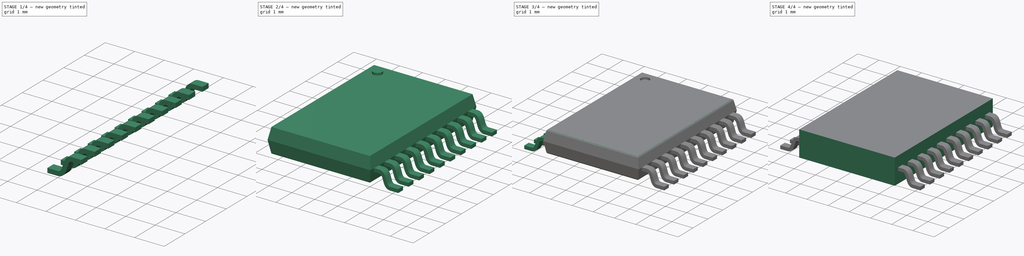
[diagram: build sequence overview — one tinted view per stage of 4, left to right]
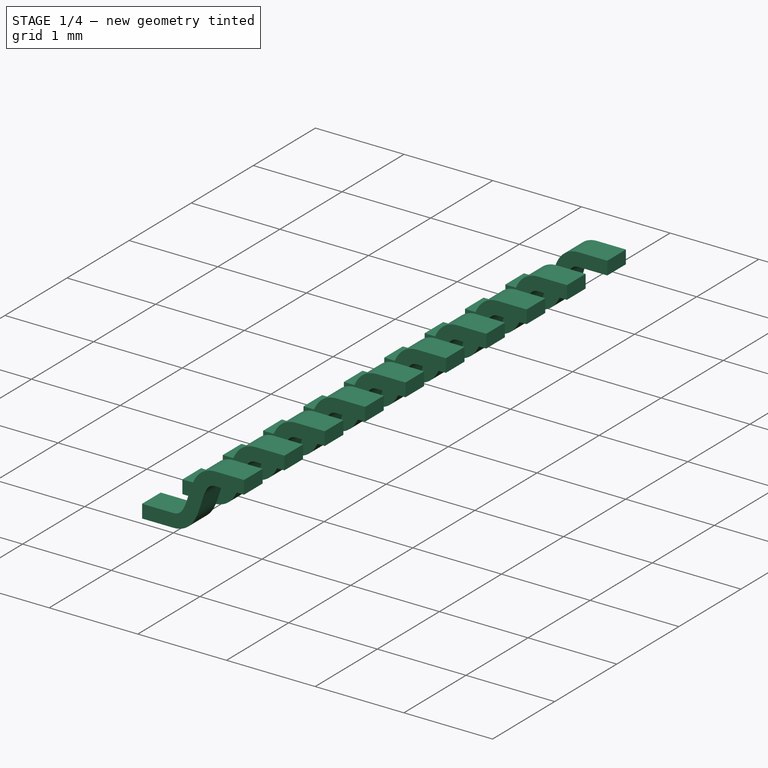
[diagram: stage 1 of 4 — iso view after this stage's code; geometry added in this stage tinted green]
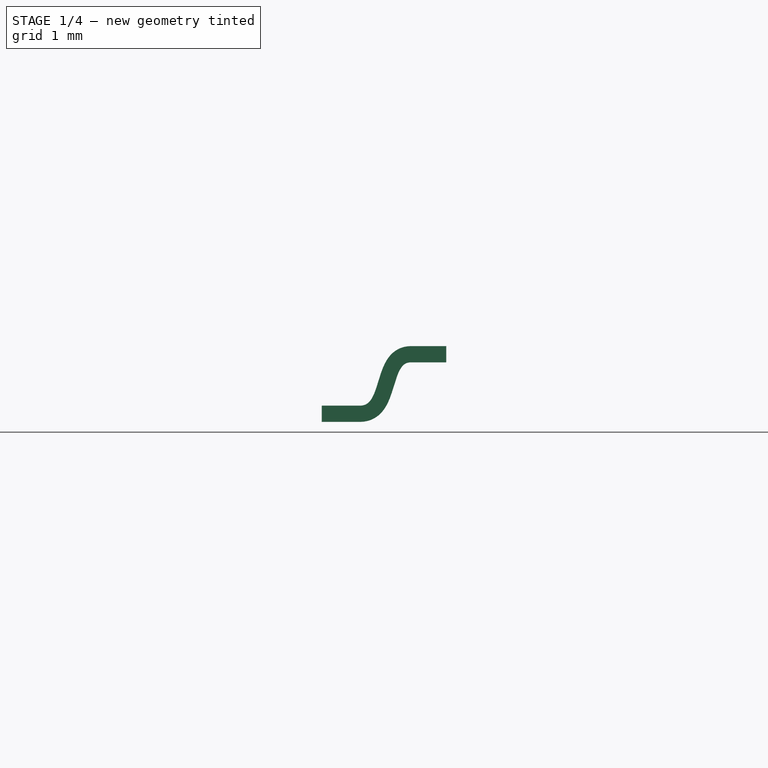
[diagram: stage 1 of 4 — front view after this stage's code; geometry added in this stage tinted green]
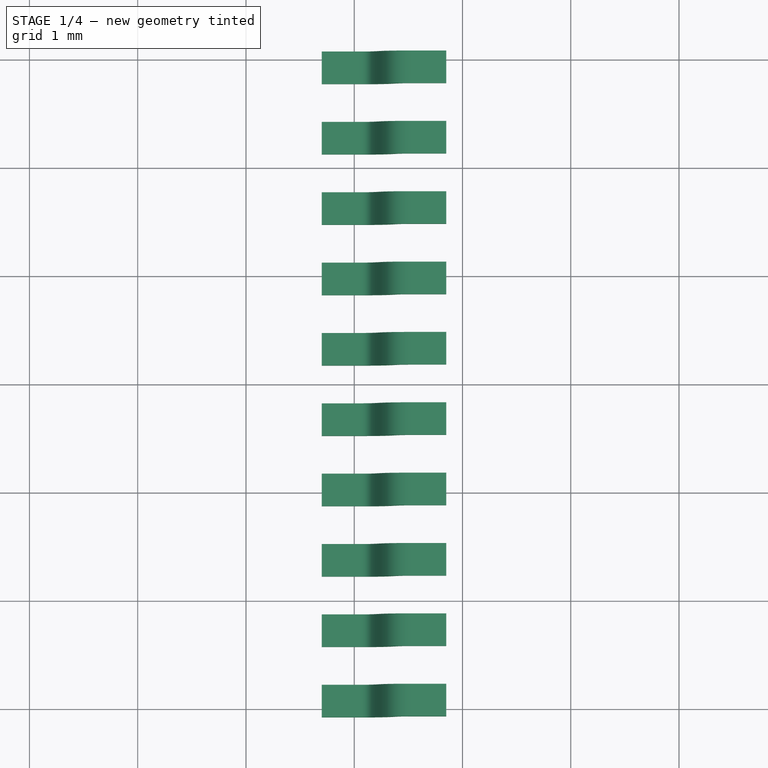
[diagram: stage 1 of 4 — top view after this stage's code; geometry added in this stage tinted green]
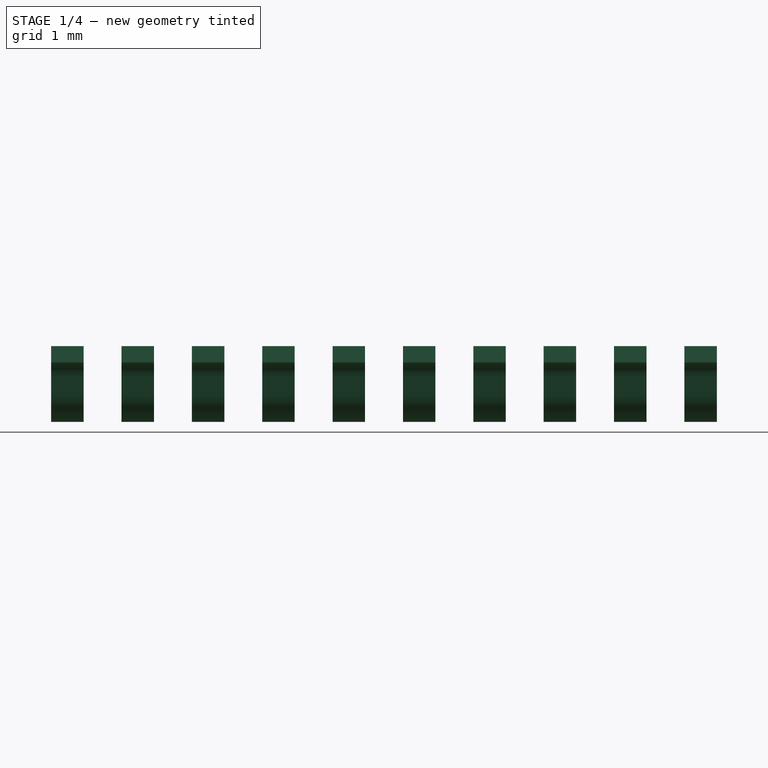
[diagram: stage 1 of 4 — right view after this stage's code; geometry added in this stage tinted green]
FCSTD DOCUMENT  (FreeCAD 0.16R6458 (Git))
Label: HTSSOP-20
License: CC-BY 3.0
LicenseURL: http://creativecommons.org/licenses/by/3.0/
objects: Sketcher::SketchObject×7, Part::Box×1, PartDesign::Pad×1, Part::Part2DObjectPython×1, Part::Sweep×1, Part::Loft×1, Part::Fillet×1, Part::Cylinder×1, Part::Cut×1, Part::FeaturePython×1, Part::Mirroring×1, Part::MultiFuse×1
note: 19 computed .brp shape members not serialized (recipe doc carries the construction recipe); baked Part::Feature solids carry a one-line shape summary decoded from their .brp

FEATURE [Sketcher::SketchObject] Sketch001  label="Leg_helper"
  Placement = pos=(0,0,0) rot=(1,0,0;1.5708rad)
  sketch-geometry (3):
    g0: LineSegment StartX=-3.3 StartY=0.075 StartZ=0 EndX=-2.8 EndY=0.075 EndZ=0
    g1: LineSegment StartX=-2.8 StartY=0.075 StartZ=0 EndX=-2.55 EndY=0.625 EndZ=0
    g2: LineSegment StartX=-2.55 StartY=0.625 StartZ=0 EndX=-2.15 EndY=0.625 EndZ=0
  constraints (10):
    c: Horizontal(g0)
    c: Horizontal(g2)
    c: DistanceX(g-1,g2) = -2.15
    c: DistanceY(g-1,g2) = 0.625
    c: DistanceX(g-1,g0) = -3.3
    c: DistanceY(g-1,g0) = 0.075
    c: DistanceX(g0) = 0.5
    c: DistanceX(g0,g2) = 0.75
    c: Coincident(g1,g0)
    c: Coincident(g1,g2)
FEATURE [Part::Part2DObjectPython] BezCurve  label="Leg_BezCurve"  # Draft 2D object (typed FeaturePython)
  Closed = false
  Continuity = [0,0]
  Degree = 3
  MakeFace = true
  Points = (9) [(-3.3,0,0.075),(-3.18041,0,0.075),(-3.0446,0,0.075),(-2.95135,0,0.075),(-2.63329,1.66533e-17,0.075),(-2.77621,2.78988e-16,0.625),(-2.47217,0,0.625),(-2.37525,0,0.625),(-2.15,0,0.625)]
FEATURE [Sketcher::SketchObject] Sketch002  label="Pin_Profil_Sketch"
  Placement = pos=(-3.3,0,0) rot=(0.57735,-0.57735,-0.57735;2.0944rad)
  expr: Constraints[11] = -(0.65mm * 4 + 0.65mm / 2)
  sketch-geometry (5):
    g0: LineSegment StartX=-3.075 StartY=0.15 StartZ=0 EndX=-2.775 EndY=0.15 EndZ=0
    g1: LineSegment StartX=-2.775 StartY=0.15 StartZ=0 EndX=-2.775 EndY=0 EndZ=0
    g2: LineSegment StartX=-2.775 StartY=0 StartZ=0 EndX=-3.075 EndY=0 EndZ=0
    g3: LineSegment StartX=-3.075 StartY=0 StartZ=0 EndX=-3.075 EndY=0.15 EndZ=0
    g4: GeomPoint [constr] X=-2.925 Y=0 Z=0
  constraints (13):
    c: Coincident(g0,g1)
    c: Coincident(g1,g2)
    c: Coincident(g2,g3)
    c: Coincident(g3,g0)
    c: Horizontal(g0)
    c: Horizontal(g2)
    c: Vertical(g1)
    c: Vertical(g3)
    c: DistanceX(g0) = 0.3
    c: DistanceY(g1) = -0.15
    c: Symmetric(g2,g2,g4)
    c: DistanceX(g-1,g4) = -2.925
    c: PointOnObject(g4,g-1)
FEATURE [Part::Sweep] Sweep  label="Pin_Sweep"
  Frenet = false
  Sections = -> [Sketch002]
  Solid = true
  Spine = -> BezCurve [Edge2,Edge1,Edge3]
  Transition = 1
FEATURE [Part::FeaturePython] Array  label="Pins_Array"  # Draft array (typed FeaturePython)
  Angle = 360
  ArrayType = 0
  Axis = (0,0,1)
  Base = -> Sweep
  Center = (0,0,0)
  Fuse = false
  IntervalAxis = (0,0,0)
  IntervalX = (1,0,0)
  IntervalY = (0,-0.65,0)
  IntervalZ = (0,0,0)
  NumberPolar = 1
  NumberX = 1
  NumberY = 10
  NumberZ = 1
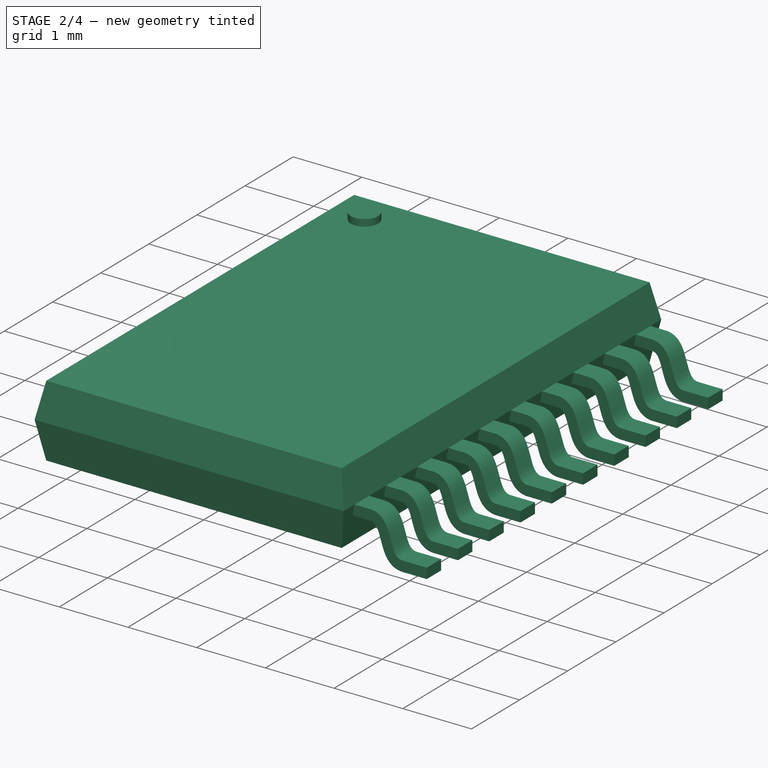
[diagram: stage 2 of 4 — iso view after this stage's code; geometry added in this stage tinted green]
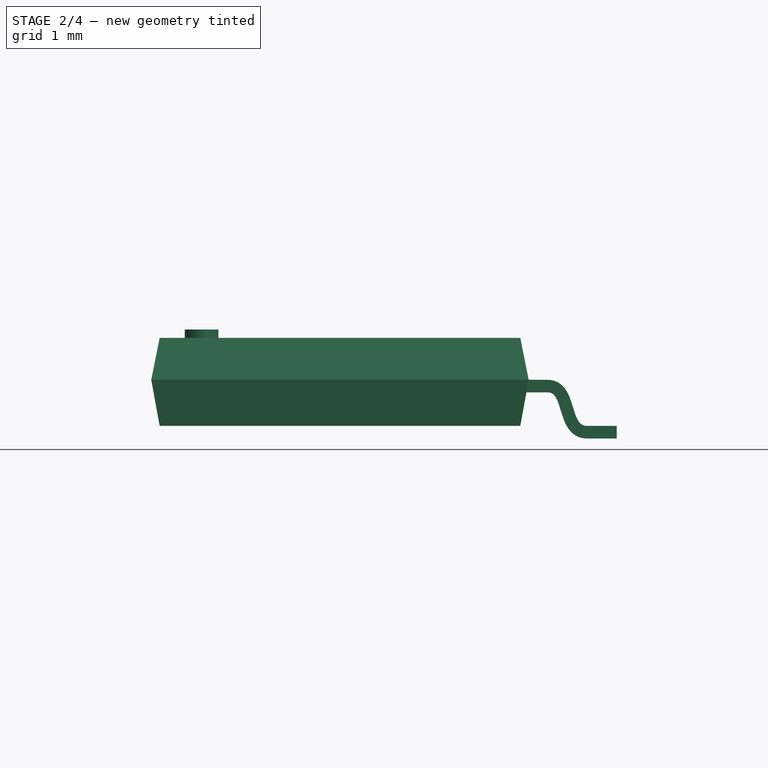
[diagram: stage 2 of 4 — front view after this stage's code; geometry added in this stage tinted green]
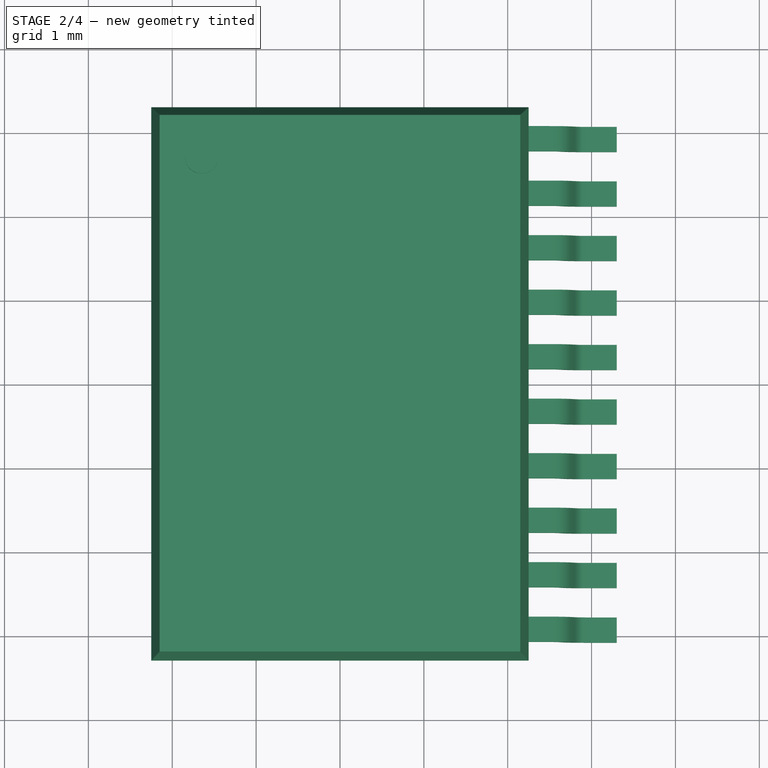
[diagram: stage 2 of 4 — top view after this stage's code; geometry added in this stage tinted green]
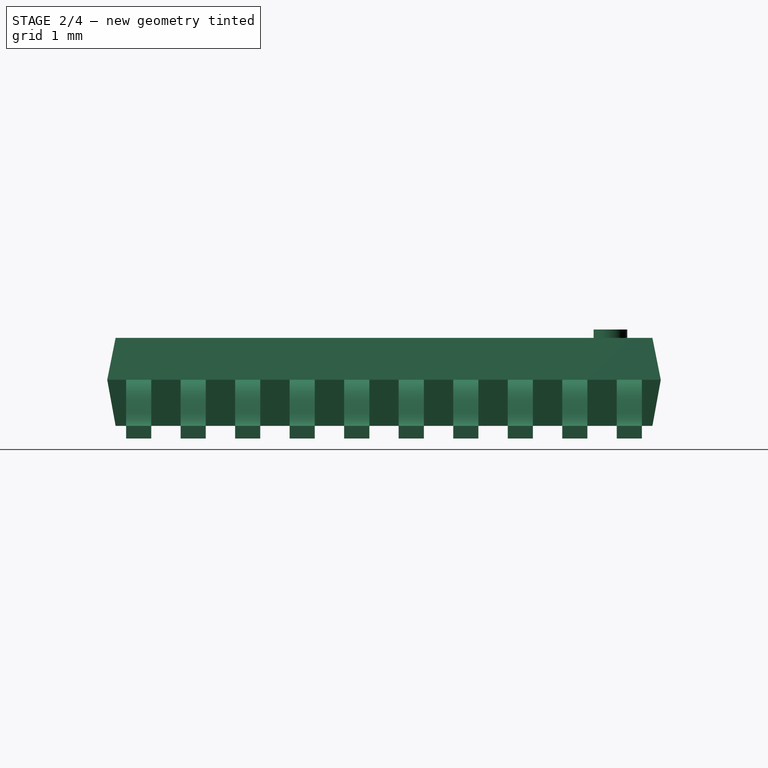
[diagram: stage 2 of 4 — right view after this stage's code; geometry added in this stage tinted green]
FEATURE [Sketcher::SketchObject] Sketch003  label="Housing_Bottom"
  Placement = pos=(0,0,0.15) rot=(0,0,1;0rad)
  sketch-geometry (4):
    g0: LineSegment StartX=-2.15 StartY=3.2 StartZ=0 EndX=2.15 EndY=3.2 EndZ=0
    g1: LineSegment StartX=2.15 StartY=3.2 StartZ=0 EndX=2.15 EndY=-3.2 EndZ=0
    g2: LineSegment StartX=2.15 StartY=-3.2 StartZ=0 EndX=-2.15 EndY=-3.2 EndZ=0
    g3: LineSegment StartX=-2.15 StartY=-3.2 StartZ=0 EndX=-2.15 EndY=3.2 EndZ=0
  constraints (11):
    c: Coincident(g0,g1)
    c: Coincident(g1,g2)
    c: Coincident(g2,g3)
    c: Coincident(g3,g0)
    c: Horizontal(g0)
    c: Horizontal(g2)
    c: Vertical(g1)
    c: Vertical(g3)
    c: DistanceX(g0) = 4.3
    c: DistanceY(g1) = -6.4
    c: Symmetric(g0,g2,g-1)
FEATURE [Sketcher::SketchObject] Sketch004  label="Housing_Center"
  Placement = pos=(0,0,0.7) rot=(0,0,1;0rad)
  sketch-geometry (4):
    g0: LineSegment StartX=-2.25 StartY=3.3 StartZ=0 EndX=2.25 EndY=3.3 EndZ=0
    g1: LineSegment StartX=2.25 StartY=3.3 StartZ=0 EndX=2.25 EndY=-3.3 EndZ=0
    g2: LineSegment StartX=2.25 StartY=-3.3 StartZ=0 EndX=-2.25 EndY=-3.3 EndZ=0
    g3: LineSegment StartX=-2.25 StartY=-3.3 StartZ=0 EndX=-2.25 EndY=3.3 EndZ=0
  constraints (11):
    c: Coincident(g0,g1)
    c: Coincident(g1,g2)
    c: Coincident(g2,g3)
    c: Coincident(g3,g0)
    c: Horizontal(g0)
    c: Horizontal(g2)
    c: Vertical(g1)
    c: Vertical(g3)
    c: Symmetric(g0,g2,g-1)
    c: DistanceX(g0) = 4.5
    c: DistanceY(g1) = -6.6
FEATURE [Sketcher::SketchObject] Sketch005  label="Housing_Top"
  Placement = pos=(0,0,1.2) rot=(0,0,1;0rad)
  sketch-geometry (4):
    g0: LineSegment StartX=-2.15 StartY=3.2 StartZ=0 EndX=2.15 EndY=3.2 EndZ=0
    g1: LineSegment StartX=2.15 StartY=3.2 StartZ=0 EndX=2.15 EndY=-3.2 EndZ=0
    g2: LineSegment StartX=2.15 StartY=-3.2 StartZ=0 EndX=-2.15 EndY=-3.2 EndZ=0
    g3: LineSegment StartX=-2.15 StartY=-3.2 StartZ=0 EndX=-2.15 EndY=3.2 EndZ=0
  constraints (11):
    c: Coincident(g0,g1)
    c: Coincident(g1,g2)
    c: Coincident(g2,g3)
    c: Coincident(g3,g0)
    c: Horizontal(g0)
    c: Horizontal(g2)
    c: Vertical(g1)
    c: Vertical(g3)
    c: Symmetric(g0,g2,g-1)
    c: DistanceX(g0) = 4.3
    c: DistanceY(g1) = -6.4
FEATURE [Part::Loft] Loft  label="Housing_Loft"
  Closed = false
  Ruled = true
  Sections = -> [Sketch005,Sketch004,Sketch003]
  Solid = true
FEATURE [Part::Cylinder] Cylinder  label="Housing_Mark"
  Angle = 360
  Height = 0.2
  Placement = pos=(-1.65,2.7,1.1) rot=(0,0,1;0rad)
  Radius = 0.2
FEATURE [Part::Mirroring] Part__Mirroring  label="Pins_Array (Mirror #1)"
  Base = (0,0,0)
  Normal = (1,0,0)
  Source = -> Array
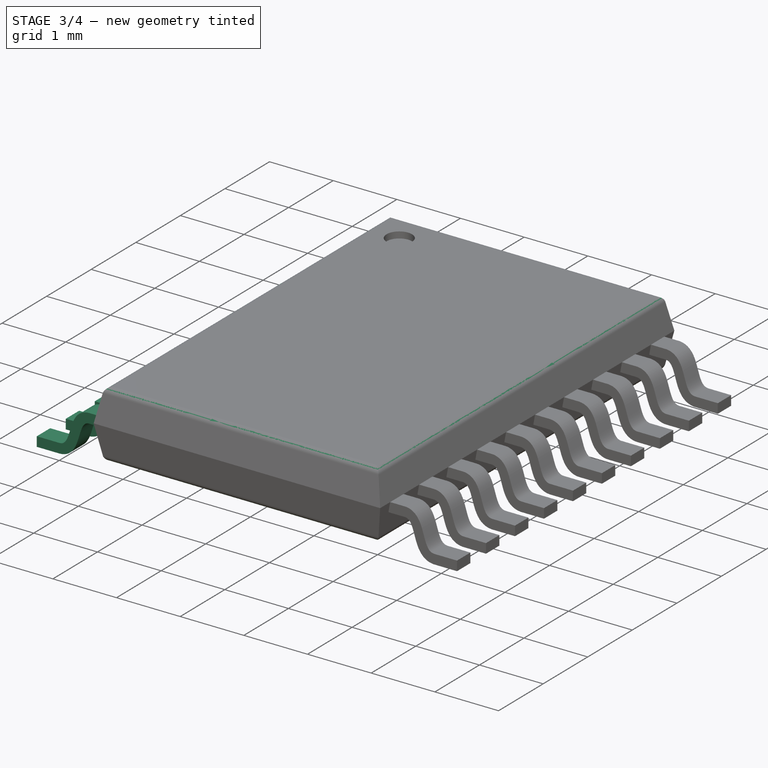
[diagram: stage 3 of 4 — iso view after this stage's code; geometry added in this stage tinted green]
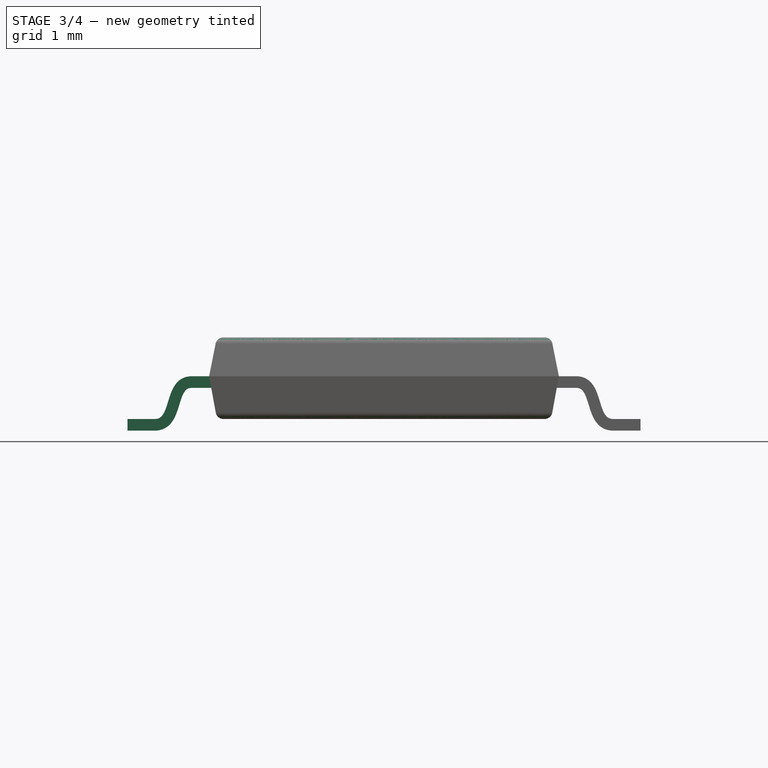
[diagram: stage 3 of 4 — front view after this stage's code; geometry added in this stage tinted green]
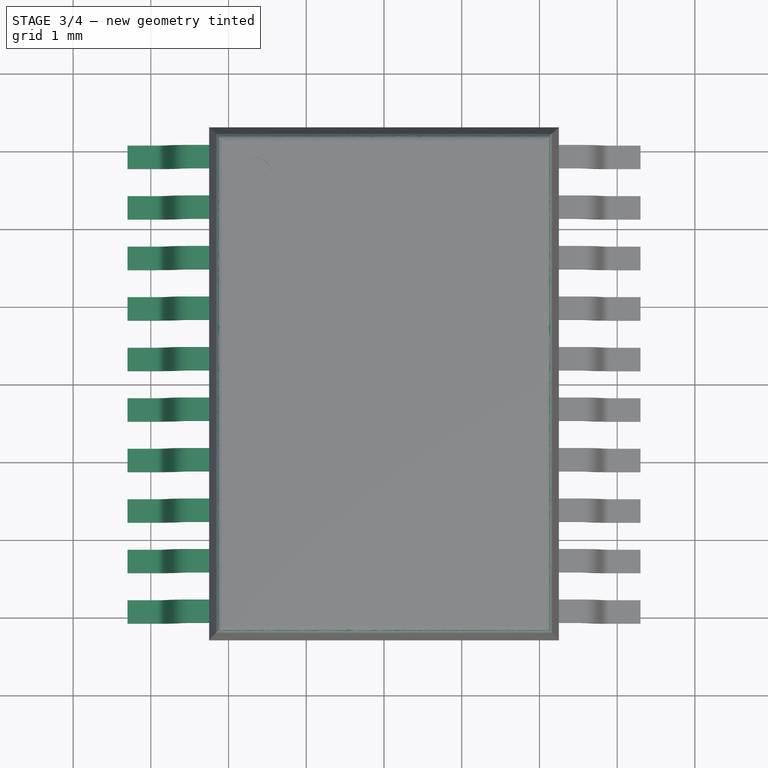
[diagram: stage 3 of 4 — top view after this stage's code; geometry added in this stage tinted green]
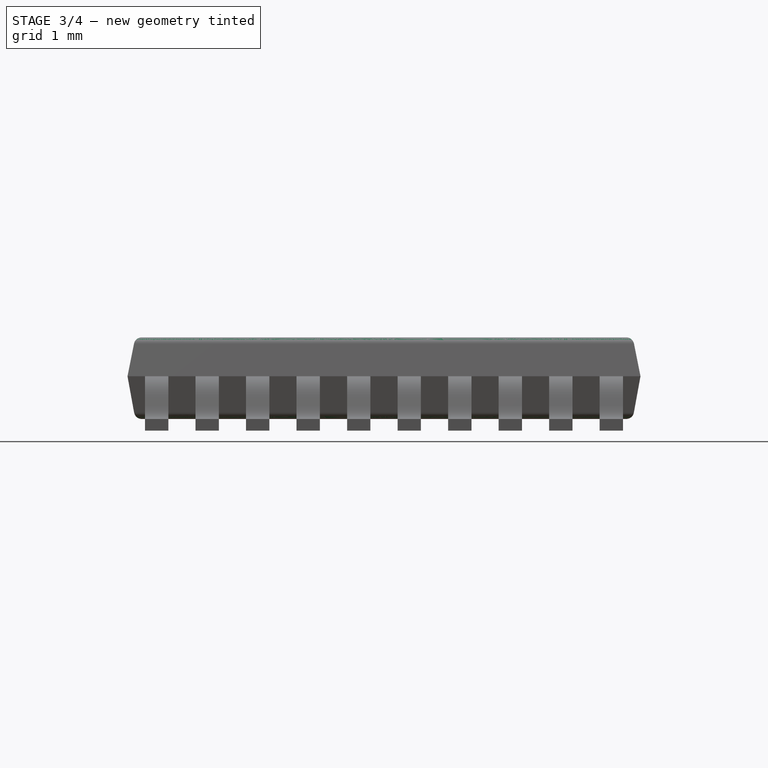
[diagram: stage 3 of 4 — right view after this stage's code; geometry added in this stage tinted green]
FEATURE [Part::Fillet] Fillet  label="Housing_Fillet"
  Base = -> Loft
  Edges = 8 edges r=0.1: [Edge1,Edge5,Edge8,Edge11,Edge14,Edge17,Edge19,Edge20]
FEATURE [Part::Cut] Cut  label="Housing"
  Base = -> Fillet
  Tool = -> Cylinder
FEATURE [Part::MultiFuse] Fusion  label="HTSSOP-20"
  Shapes = -> [Part__Mirroring,Cut,Array]
FEATURE [Sketcher::SketchObject] Sketch006  label="Silcsreen_Helper"
  sketch-geometry (4):
    g0: LineSegment StartX=-2.25 StartY=3.3 StartZ=0 EndX=2.25 EndY=3.3 EndZ=0
    g1: LineSegment StartX=2.25 StartY=3.3 StartZ=0 EndX=2.25 EndY=-3.3 EndZ=0
    g2: LineSegment StartX=2.25 StartY=-3.3 StartZ=0 EndX=-2.25 EndY=-3.3 EndZ=0
    g3: LineSegment StartX=-2.25 StartY=-3.3 StartZ=0 EndX=-2.25 EndY=3.3 EndZ=0
  constraints (13):
    c: Coincident(g0,g1)
    c: Coincident(g1,g2)
    c: Coincident(g2,g3)
    c: Coincident(g3,g0)
    c: Horizontal(g0)
    c: Horizontal(g2)
    c: Vertical(g1)
    c: Vertical(g3)
    c: Symmetric(g0,g2,g-1)
    c: DistanceY(g1) = -6.6
    c: DistanceX(g0) = 4.5
    c: DistanceX(g2) = -2.25
    c: DistanceY(g2) = -3.3
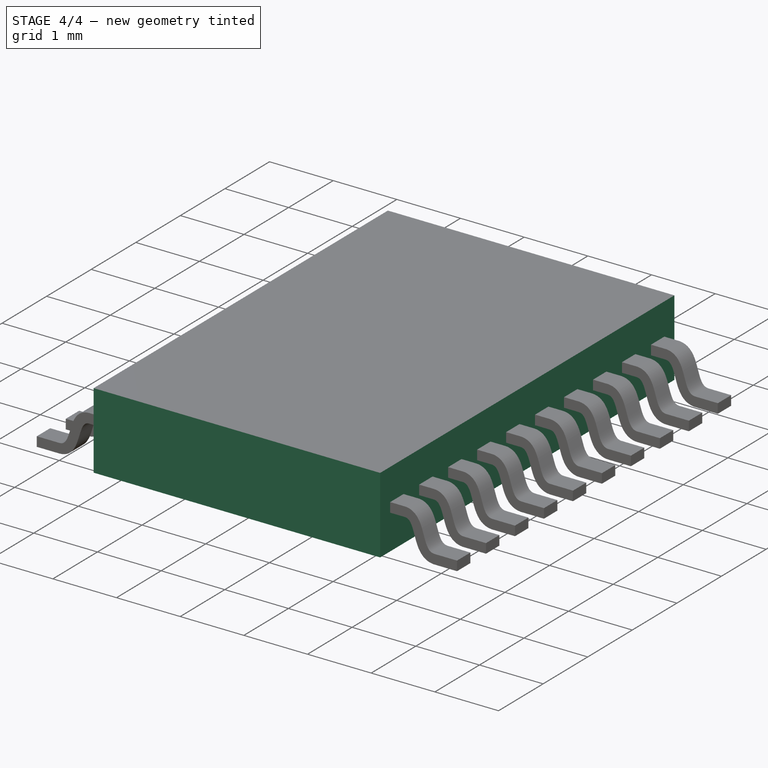
[diagram: stage 4 of 4 — iso view after this stage's code; geometry added in this stage tinted green]
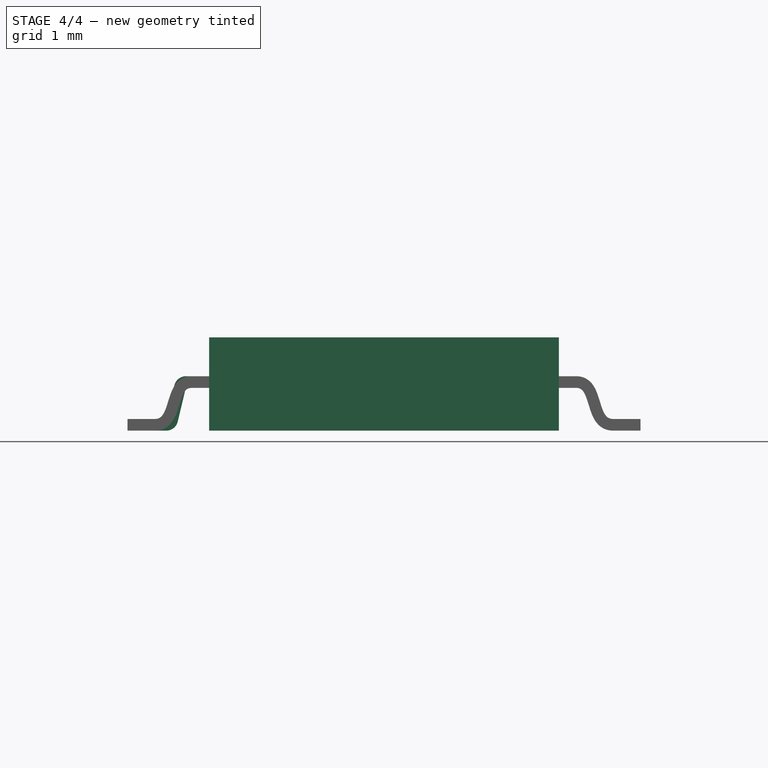
[diagram: stage 4 of 4 — front view after this stage's code; geometry added in this stage tinted green]
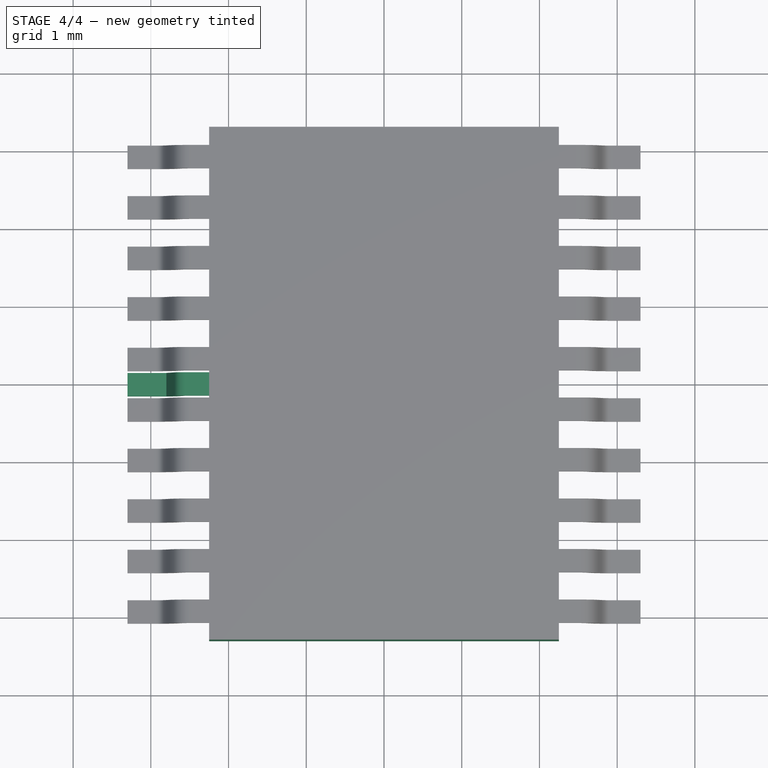
[diagram: stage 4 of 4 — top view after this stage's code; geometry added in this stage tinted green]
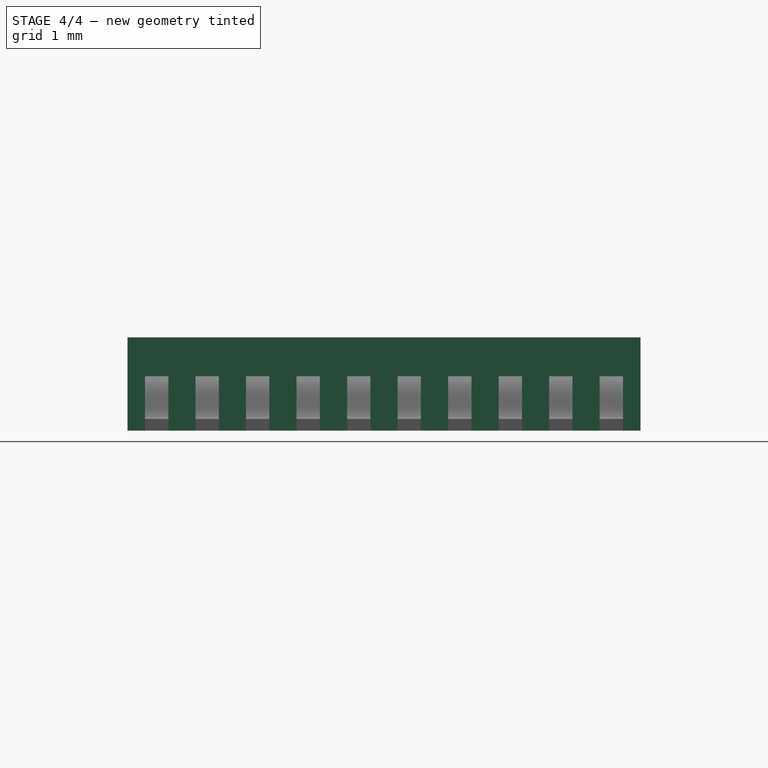
[diagram: stage 4 of 4 — right view after this stage's code; geometry added in this stage tinted green]
FEATURE [Part::Box] Box  label="Body"
  Height = 1.2
  Length = 4.5
  Placement = pos=(-2.25,-3.3,0) rot=(0,0,1;0rad)
  Width = 6.6
FEATURE [Sketcher::SketchObject] Sketch  label="Leg_Sketch"
  Placement = pos=(0,0,0) rot=(1,0,0;1.5708rad)
  sketch-geometry (15):
    g0: LineSegment StartX=-3.3 StartY=0.15 StartZ=0 EndX=-2.8 EndY=0.15 EndZ=0
    g1: LineSegment [constr] StartX=-2.8 StartY=0.15 StartZ=0 EndX=-2.8 EndY=0 EndZ=0
    g2: LineSegment StartX=-2.8 StartY=0 StartZ=0 EndX=-3.3 EndY=0 EndZ=0
    g3: LineSegment StartX=-3.3 StartY=0 StartZ=0 EndX=-3.3 EndY=0.15 EndZ=0
    g4: LineSegment StartX=-2.55 StartY=0.7 StartZ=0 EndX=-2.25 EndY=0.7 EndZ=0
    g5: LineSegment StartX=-2.25 StartY=0.7 StartZ=0 EndX=-2.25 EndY=0.55 EndZ=0
    g6: LineSegment StartX=-2.25 StartY=0.55 StartZ=0 EndX=-2.55 EndY=0.55 EndZ=0
    g7: LineSegment [constr] StartX=-2.55 StartY=0.55 StartZ=0 EndX=-2.55 EndY=0.7 EndZ=0
    g8: LineSegment [constr] StartX=-2.69588 StartY=0.584924 StartZ=0 EndX=-2.55 EndY=0.55 EndZ=0
    g9: LineSegment StartX=-2.55 StartY=0.55 StartZ=0 EndX=-2.65412 EndY=0.115076 EndZ=0
    g10: LineSegment [constr] StartX=-2.65412 StartY=0.115076 StartZ=0 EndX=-2.8 EndY=0.15 EndZ=0
    g11: LineSegment StartX=-2.8 StartY=0.15 StartZ=0 EndX=-2.69588 EndY=0.584924 EndZ=0
    g12: LineSegment [constr] StartX=-2.8 StartY=0 StartZ=0 EndX=0 EndY=0 EndZ=0
    g13: ArcOfCircle CenterX=-2.55 CenterY=0.55 CenterZ=0 NormalX=0 NormalY=0 NormalZ=1 Radius=0.15 StartAngle=1.5708 EndAngle=2.90661
    g14: ArcOfCircle CenterX=-2.8 CenterY=0.15 CenterZ=0 NormalX=0 NormalY=0 NormalZ=1 Radius=0.15 StartAngle=4.71239 EndAngle=6.0482
  constraints (41):
    c: Coincident(g0,g1)
    c: Coincident(g1,g2)
    c: Coincident(g2,g3)
    c: Coincident(g3,g0)
    c: Horizontal(g0)
    c: Horizontal(g2)
    c: Vertical(g1)
    c: Vertical(g3)
    c: DistanceY(g3) = 0.15
    c: Coincident(g4,g5)
    c: Coincident(g5,g6)
    c: Coincident(g6,g7)
    c: Coincident(g7,g4)
    c: Horizontal(g4)
    c: Horizontal(g6)
    c: Vertical(g5)
    c: Vertical(g7)
    c: Coincident(g8,g9)
    c: Coincident(g9,g10)
    c: Coincident(g10,g11)
    c: Coincident(g11,g8)
    c: Equal(g3,g10)
    c: Equal(g10,g7)
    c: Coincident(g8,g6)
    c: Coincident(g0,g10)
    c: Coincident(g12,g1)
    c: Coincident(g12,g-1)
    c: Horizontal(g12)
    c: Coincident(g13,g6)
    c: Coincident(g13,g8)
    c: Coincident(g13,g4)
    c: Coincident(g14,g0)
    c: Coincident(g14,g9)
    c: Coincident(g14,g1)
    c: DistanceX(g-1,g4) = -2.25
    c: DistanceY(g-1,g4) = 0.7
    c: DistanceX(g-1,g2) = -3.3
    c: DistanceX(g2) = -0.5
    c: DistanceX(g2,g6) = 0.75
    c: Perpendicular(g10,g9)
    c: Perpendicular(g11,g8)
FEATURE [PartDesign::Pad] Pad  label="LegOLD"
  Length = 0.3
  Length2 = 100
  Midplane = true
  Placement = pos=(0,0,0) rot=(1,0,0;1.5708rad)
  Sketch = -> Sketch
  Type = 0
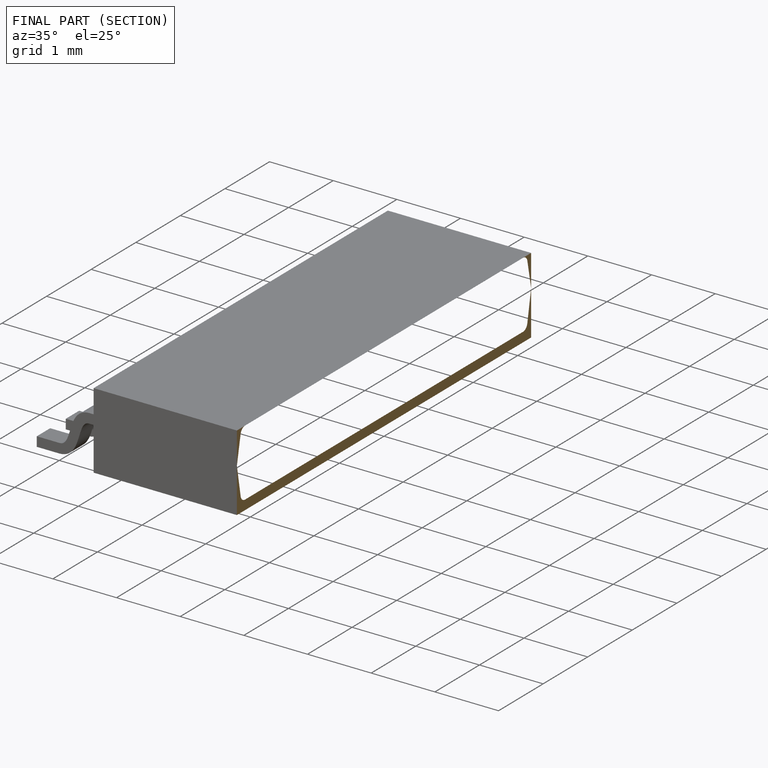
[diagram: finished part — half-section view (interior)]
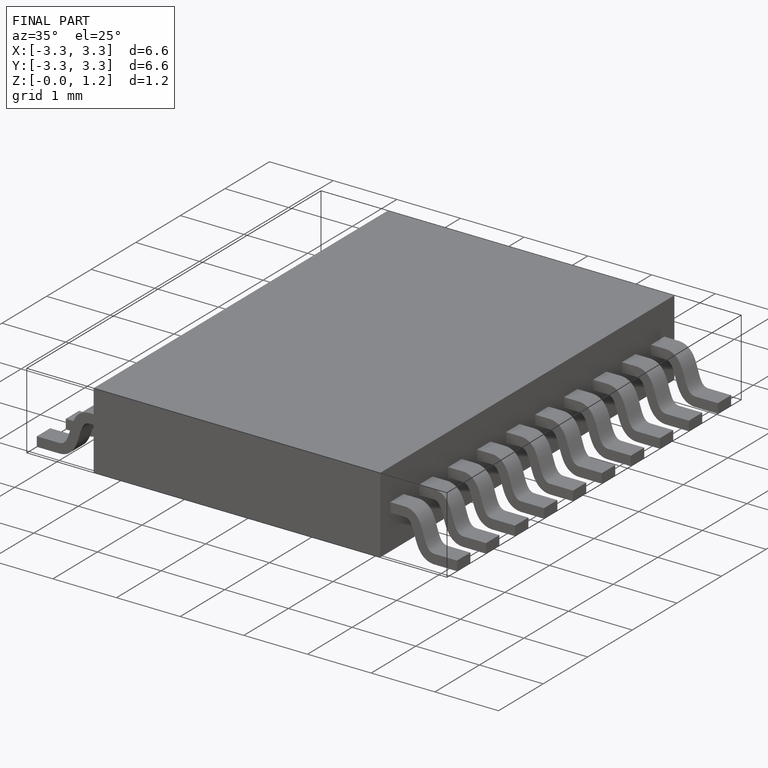
[diagram: finished part — iso view with bounding-box wireframe]
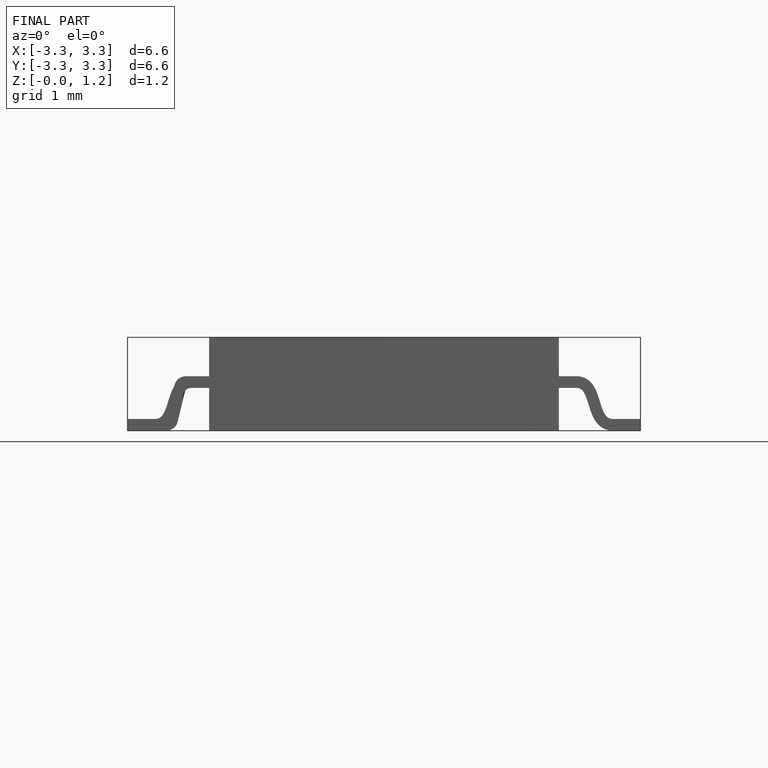
[diagram: finished part — front view with bounding-box wireframe]
